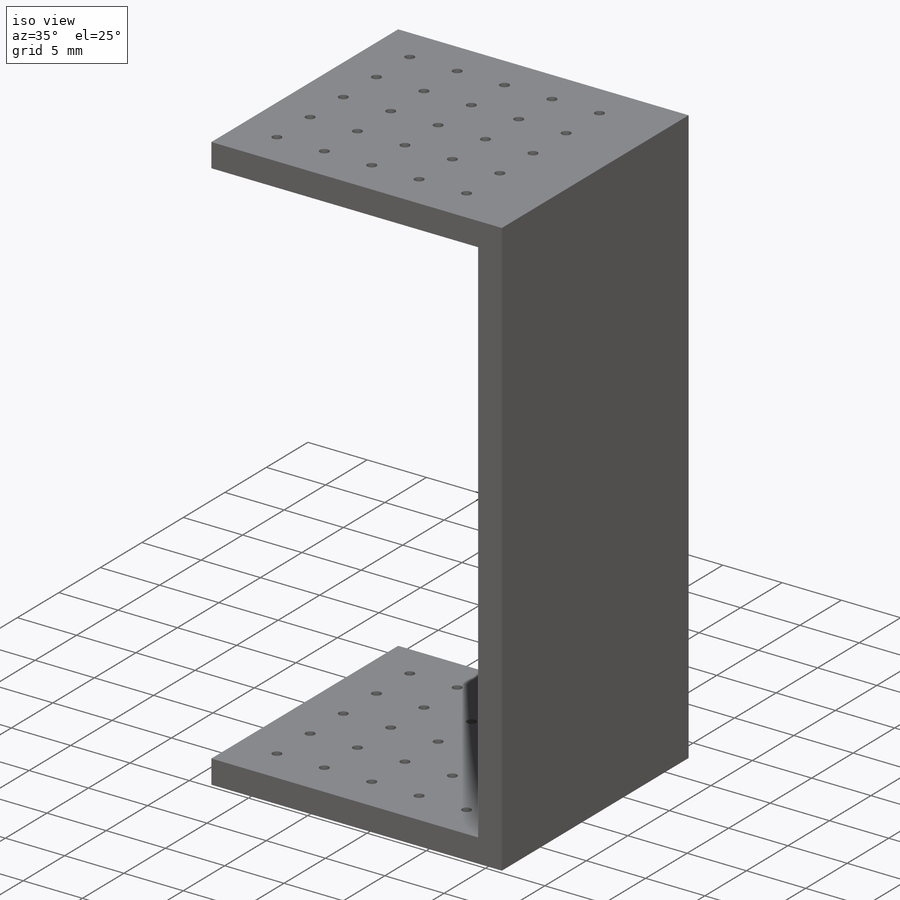
[diagram: iso view]
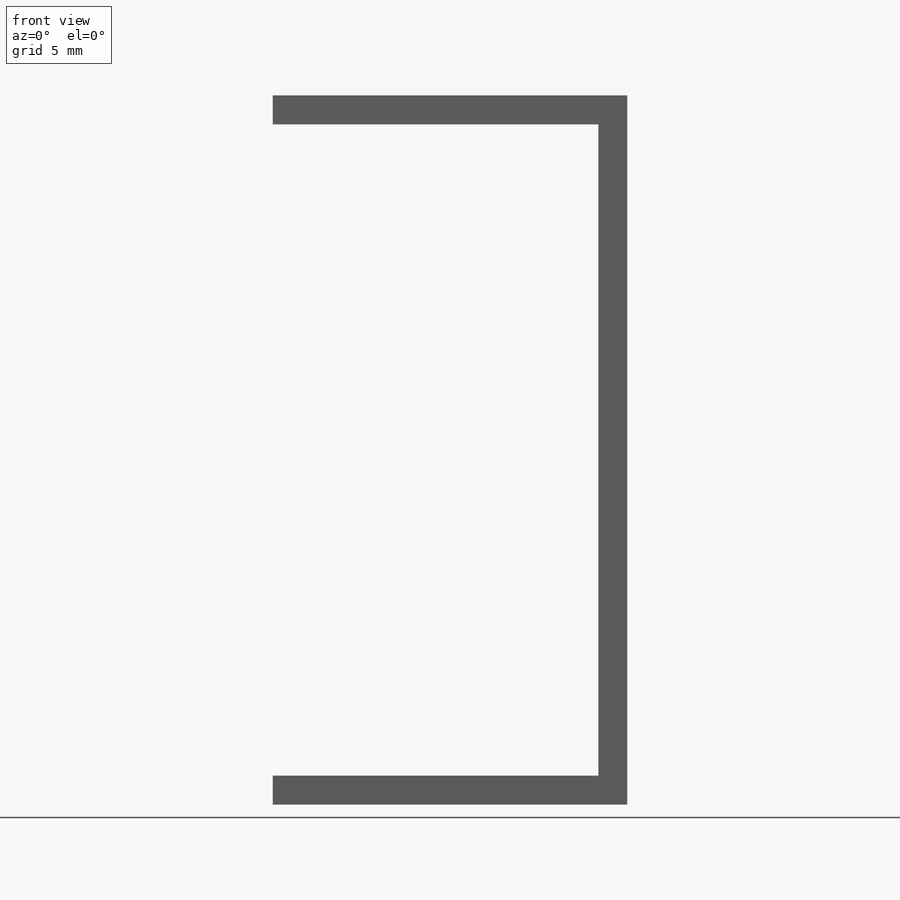
[diagram: front view]
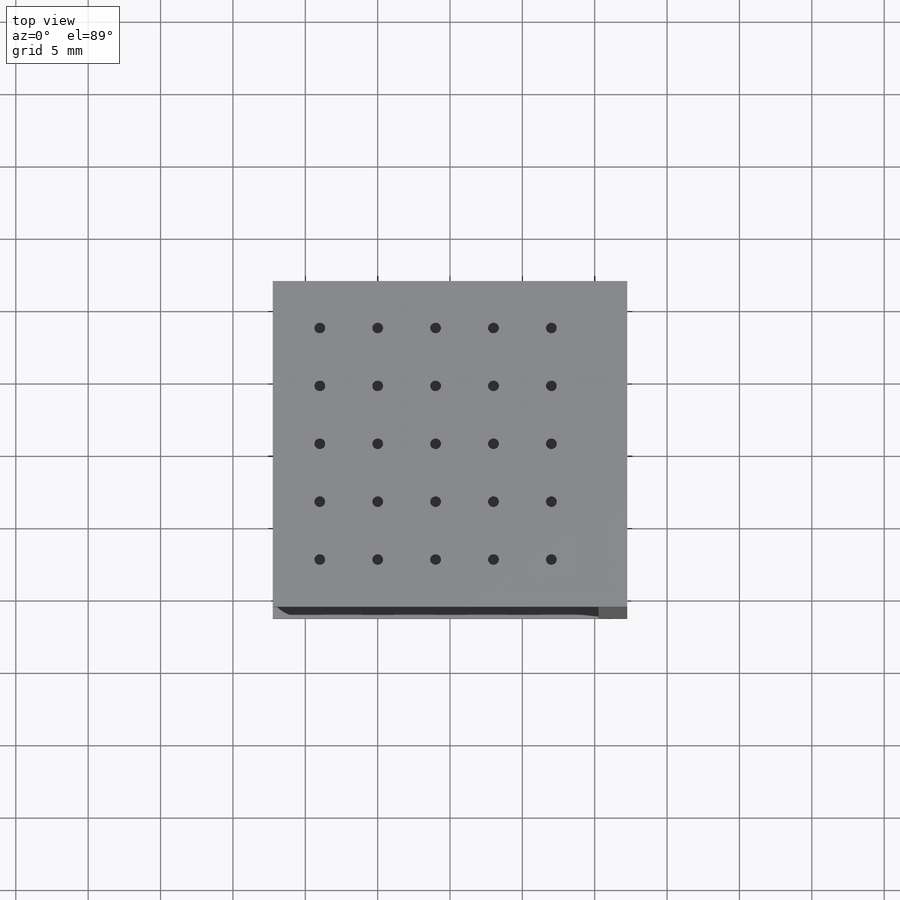
[diagram: top view]
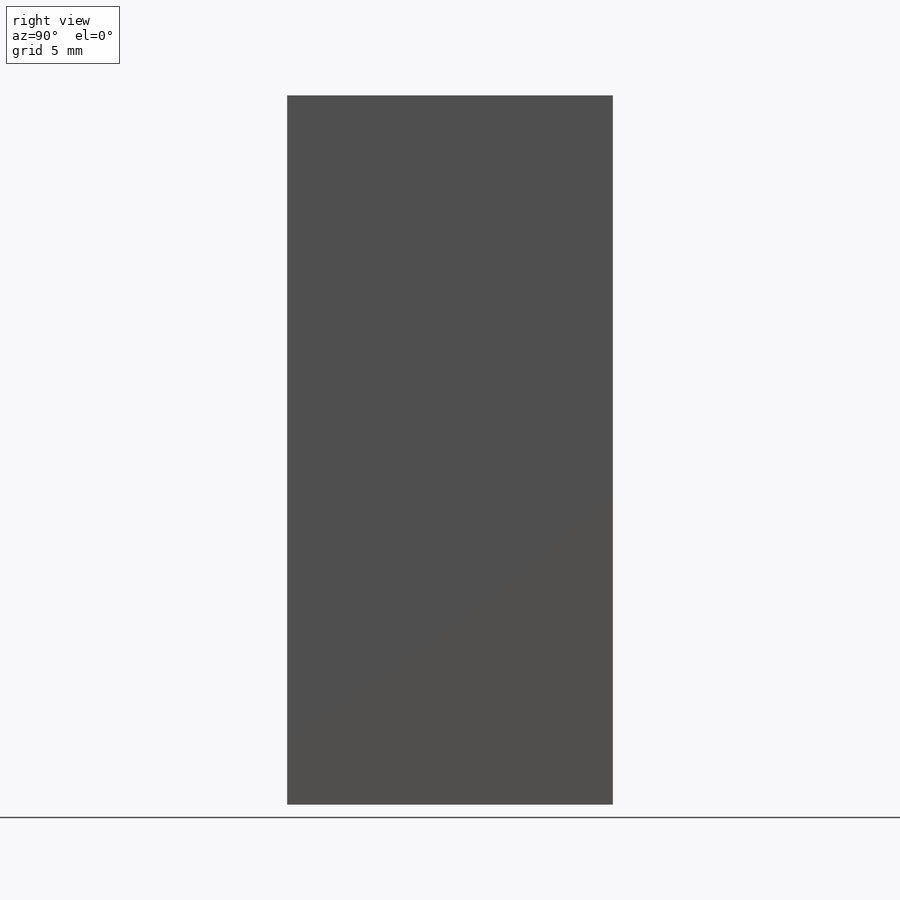
[diagram: right view]
SOLIDWORKS PART (.sldprt)
format: sldprt  version: not decoded by parser v0  size: 294,400 bytes
history: native  units: mm
features: sketch x4, extrude x3, material x1, cut_extrude x1, pattern_linear x1 (+13 scaffold rows collapsed)
feature tree (23):
  scaffold x13  (default folders/planes/origin — collapsed)
  material  "Material <not specified>"
  sketch  "Sketch1"  dims[c1.D1=20.0mm c1.D2=22.5mm c2.D1=24.5mm]
  extrude  "Boss-Extrude1"  Depth=2mm
  sketch  "Sketch2"  dims[D1=2.0mm D2=2.0mm]
  extrude  "Boss-Extrude2"  Depth=45mm
  sketch  "Sketch3"  dims[c1.D1=0.75mm c1.D2=0.75mm c1.D6=0.75mm c2.D2=0.05mm c2.D3=0.05mm c2.D4=3.25mm c2.D5=4.0mm c3.D3=3.25mm c3.D6=2.0mm]
  sketch  "Sketch4"  dims[D1=24.5mm D2=22.5mm]
  extrude  "Boss-Extrude3"  Depth=2mm
  cut_extrude  "Cut-Extrude1"  [1 undecoded]
  pattern_linear  "LPattern1"  Count1=5 Count2=5 Spacing1=4mm Spacing2=4mm
decode coverage: 8 of 9 modeling features carry decoded parameters
note: 1 parameter value undecoded
note: suppression state not decoded; provenance and decode notes live in map.json
